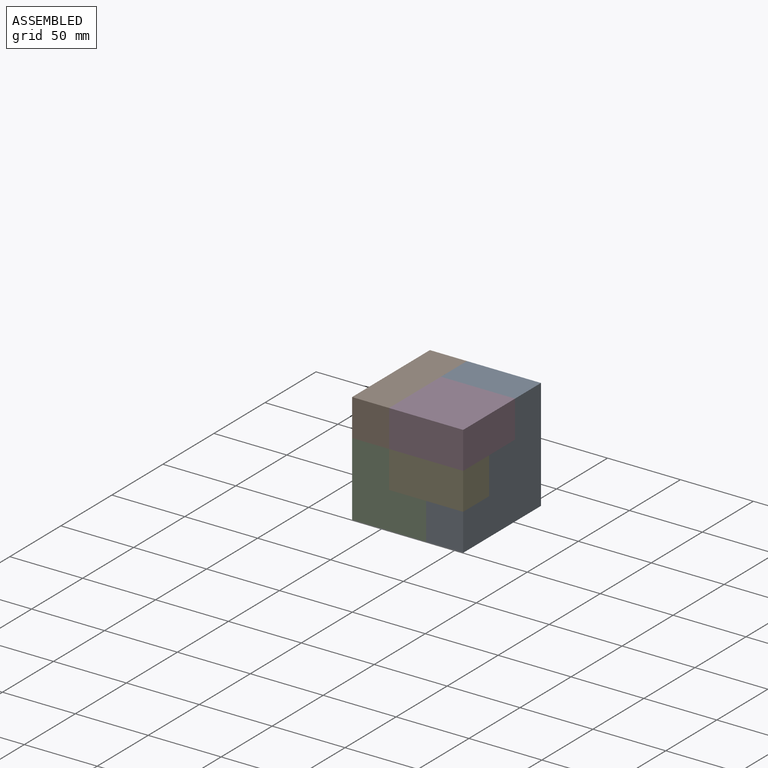
[diagram: assembled view]
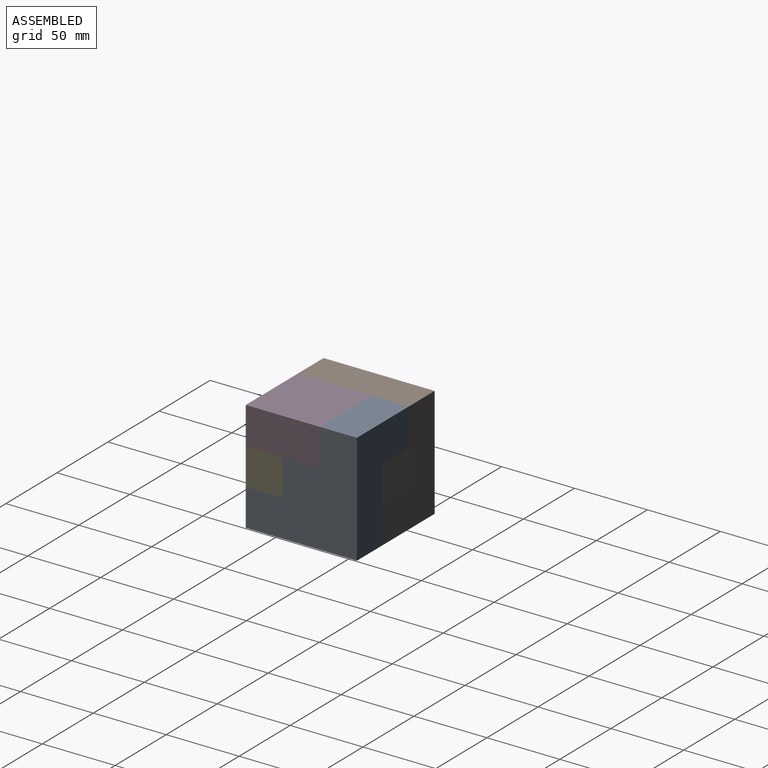
[diagram: assembled view, second angle]
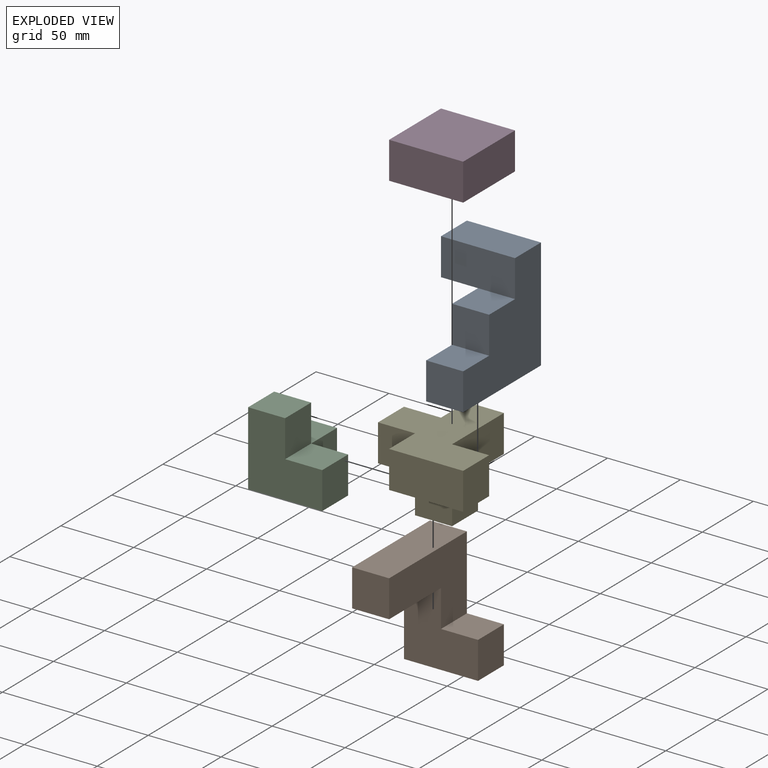
[diagram: exploded view]
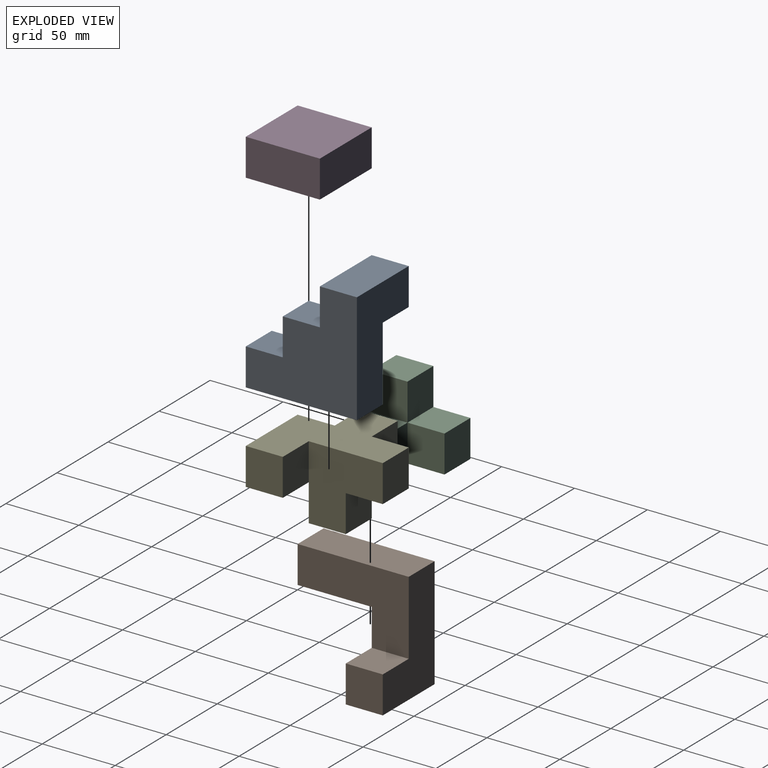
[diagram: exploded view, second angle]
ASSEMBLY  parts=5 mates=11
PART A: 12 faces, bbox 76.2x50.8x76.2 mm
  f0: plane 25.4x25.4mm, normal (1,0,0), area 645.2mm2, adj f1,f5,f6,f7
  f1: plane 25.4x25.4mm, normal (0,0,1), area 645.2mm2, adj f0,f6,f7,f9
  f2: plane 76.2x50.8mm, normal (-1,0,0), area 2580.6mm2, adj f3,f6,f7,f8,f10,f11
  f3: plane 76.2x25.4mm, normal (0,0,-1), area 1935.5mm2, adj f2,f4,f6,f7
  f4: plane 25.4x25.4mm, normal (1,0,0), area 645.2mm2, adj f3,f5,f6,f7
  f5: plane 25.4x25.4mm, normal (0,0,1), area 645.2mm2, adj f0,f4,f6,f7
  f6: plane 76.2x50.8mm, normal (0,-1,0), area 3225.8mm2, adj f0,f1,f2,f3,f4,f5,f8
  f7: plane 76.2x76.2mm, normal (0,1,0), area 3871mm2, adj f0,f1,f2,f3,f4,f5,f9,f10
  f8: plane 25.4x25.4mm, normal (0,0,-1), area 645.2mm2, adj f2,f6,f9,f11
  f9: plane 50.8x25.4mm, normal (1,0,0), area 1290.3mm2, adj f1,f7,f8,f10,f11
  f10: plane 50.8x25.4mm, normal (0,0,1), area 1290.3mm2, adj f2,f7,f9,f11
  f11: plane 25.4x25.4mm, normal (0,-1,0), area 645.2mm2, adj f2,f8,f9,f10
PART B: 10 faces, bbox 76.2x50.8x76.2 mm
  f0: plane 76.2x25.4mm, normal (-1,0,0), area 1935.5mm2, adj f1,f5,f6,f7
  f1: plane 25.4x25.4mm, normal (0,0,-1), area 645.2mm2, adj f0,f2,f6,f7
  f2: plane 50.8x25.4mm, normal (1,0,0), area 1290.3mm2, adj f1,f3,f6,f7
  f3: plane 50.8x50.8mm, normal (0,0,-1), area 1935.5mm2, adj f2,f4,f6,f7,f8,f9
  f4: plane 50.8x25.4mm, normal (1,0,0), area 1290.3mm2, adj f3,f5,f7,f9
  f5: plane 76.2x50.8mm, normal (0,0,1), area 2580.6mm2, adj f0,f4,f6,f7,f8,f9
  f6: plane 76.2x50.8mm, normal (0,-1,0), area 2580.6mm2, adj f0,f1,f2,f3,f5,f8
  f7: plane 76.2x76.2mm, normal (0,1,0), area 3225.8mm2, adj f0,f1,f2,f3,f4,f5
  f8: plane 25.4x25.4mm, normal (-1,0,0), area 645.2mm2, adj f3,f5,f6,f9
  f9: plane 25.4x25.4mm, normal (0,-1,0), area 645.2mm2, adj f3,f4,f5,f8
PART C: 12 faces, bbox 50.8x50.8x50.8 mm
  f0: plane 25.4x25.4mm, normal (0,-1,0), area 645.2mm2, adj f2,f6,f7,f9
  f1: plane 25.4x25.4mm, normal (0,-1,0), area 645.2mm2, adj f3,f4,f5,f10
  f2: plane 50.8x50.8mm, normal (-1,0,0), area 1935.5mm2, adj f0,f3,f7,f8,f9,f11
  f3: plane 50.8x50.8mm, normal (0,0,-1), area 1935.5mm2, adj f1,f2,f4,f8,f10,f11
  f4: plane 25.4x25.4mm, normal (1,0,0), area 645.2mm2, adj f1,f3,f5,f8
  f5: plane 25.4x25.4mm, normal (0,0,1), area 645.2mm2, adj f1,f4,f6,f8
  f6: plane 25.4x25.4mm, normal (1,0,0), area 645.2mm2, adj f0,f5,f7,f8
  f7: plane 25.4x25.4mm, normal (0,0,1), area 645.2mm2, adj f0,f2,f6,f8
  f8: plane 50.8x50.8mm, normal (0,1,0), area 1935.5mm2, adj f2,f3,f4,f5,f6,f7
  f9: plane 25.4x25.4mm, normal (0,0,1), area 645.2mm2, adj f0,f2,f10,f11
  f10: plane 25.4x25.4mm, normal (1,0,0), area 645.2mm2, adj f1,f3,f9,f11
  f11: plane 25.4x25.4mm, normal (0,-1,0), area 645.2mm2, adj f2,f3,f9,f10
PART D: 6 faces, bbox 50.8x50.8x25.4 mm
  f0: plane 50.8x50.8mm, normal (0,0,1), area 2580.6mm2, adj f1,f3,f4,f5
  f1: plane 50.8x25.4mm, normal (-1,0,0), area 1290.3mm2, adj f0,f2,f4,f5
  f2: plane 50.8x50.8mm, normal (0,0,-1), area 2580.6mm2, adj f1,f3,f4,f5
  f3: plane 50.8x25.4mm, normal (1,0,0), area 1290.3mm2, adj f0,f2,f4,f5
  f4: plane 50.8x25.4mm, normal (0,-1,0), area 1290.3mm2, adj f0,f1,f2,f3
  f5: plane 50.8x25.4mm, normal (0,1,0), area 1290.3mm2, adj f0,f1,f2,f3
PART E: 18 faces, bbox 76.2x76.2x50.8 mm
  f0: plane 50.8x50.8mm, normal (0,-1,0), area 1935.5mm2, adj f2,f6,f8,f9,f13,f14,f16
  f1: plane 25.4x25.4mm, normal (1,0,0), area 645.2mm2, adj f2,f11,f12,f15
  f2: plane 76.2x76.2mm, normal (0,0,1), area 3225.8mm2, adj f0,f1,f3,f5,f7,f12,f14,f15
  f3: plane 50.8x25.4mm, normal (-1,0,0), area 1290.3mm2, adj f2,f4,f5,f17
  f4: plane 50.8x25.4mm, normal (0,0,-1), area 1290.3mm2, adj f3,f5,f6,f16,f17
  f5: plane 25.4x25.4mm, normal (0,1,0), area 645.2mm2, adj f2,f3,f4,f7
  f6: plane 25.4x25.4mm, normal (-1,0,0), area 645.2mm2, adj f0,f4,f8,f10
  f7: plane 25.4x25.4mm, normal (-1,0,0), area 645.2mm2, adj f2,f5,f11,f12
  f8: plane 25.4x25.4mm, normal (0,0,-1), area 645.2mm2, adj f0,f6,f9,f10
  f9: plane 25.4x25.4mm, normal (1,0,0), area 645.2mm2, adj f0,f8,f10,f13
  f10: plane 25.4x25.4mm, normal (0,1,0), area 645.2mm2, adj f6,f8,f9,f11
  f11: plane 25.4x25.4mm, normal (0,0,-1), area 645.2mm2, adj f1,f7,f10,f12
  f12: plane 25.4x25.4mm, normal (0,1,0), area 645.2mm2, adj f1,f2,f7,f11
  f13: plane 25.4x25.4mm, normal (0,0,-1), area 645.2mm2, adj f0,f9,f14,f15
  f14: plane 25.4x25.4mm, normal (1,0,0), area 645.2mm2, adj f0,f2,f13,f15
  f15: plane 25.4x25.4mm, normal (0,1,0), area 645.2mm2, adj f1,f2,f13,f14
  f16: plane 25.4x25.4mm, normal (1,0,0), area 645.2mm2, adj f0,f2,f4,f17
  f17: plane 25.4x25.4mm, normal (0,-1,0), area 645.2mm2, adj f2,f3,f4,f16
PLACE A rot(axis=(0,0,-1),90deg) t=(38.14,-26.82,-2.29)mm
PLACE B rot(axis=(-0.58,0.58,0.58),120deg) t=(-38.06,-38.69,39.69)mm
PLACE C rot(axis=(0,0,1),90deg) t=(-38.06,-6.83,18.53)mm
PLACE D t=(44.42,12.11,2.04)mm
PLACE E rot(axis=(0,0,1),90deg) t=(12.74,-13.29,-11.11)mm
MATE planar C.f4 <-> B.f3  axis (0,1,0) through (-25.36,12.11,-23.81)mm
MATE planar D.f2 <-> A.f1  axis (0,0,-1) through (12.74,-13.29,14.29)mm
MATE planar E.f4 <-> A.f5  axis (0,0,-1) through (12.74,-25.99,-11.11)mm
MATE planar D.f5 <-> A.f9  axis (0,1,0) through (38.14,12.11,26.99)mm
MATE planar E.f2 <-> D.f2  axis (0,0,1) through (38.14,-25.99,14.29)mm
MATE planar A.f6 <-> B.f9  axis (-1,0,0) through (12.74,4.49,-13.65)mm
MATE planar A.f3 <-> B.f4  axis (0,0,-1) through (25.44,-0.59,-36.51)mm
MATE planar A.f2 <-> B.f5  axis (0,1,0) through (19.09,37.51,7.94)mm
MATE planar E.f9 <-> B.f3  axis (0,1,0) through (0.04,12.11,-23.81)mm
MATE planar C.f11 <-> A.f6  axis (1,0,0) through (12.74,-25.99,-23.81)mm
MATE planar D.f1 <-> B.f6  axis (-1,0,0) through (-12.66,-13.29,26.99)mm
